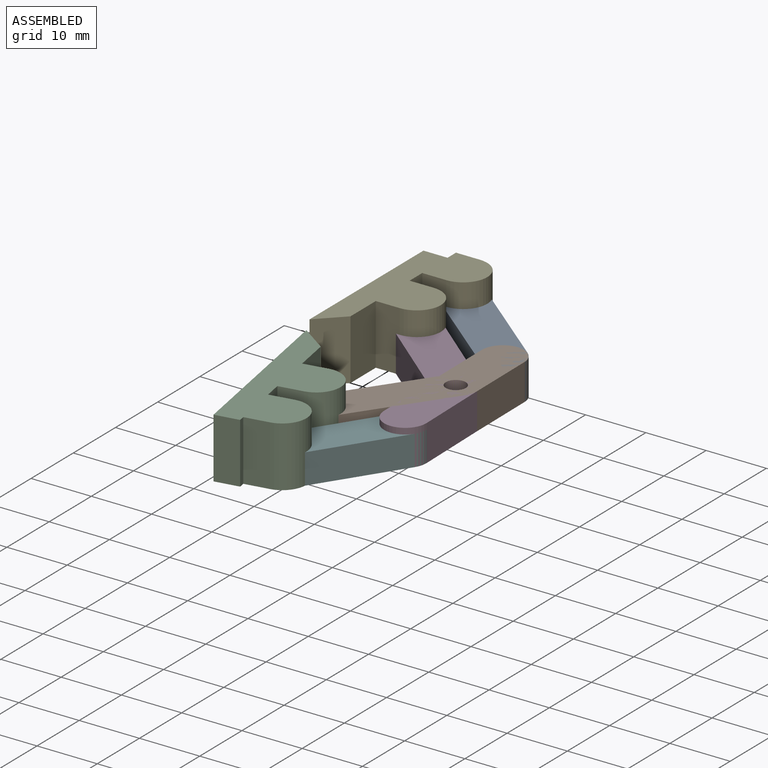
[diagram: assembled view]
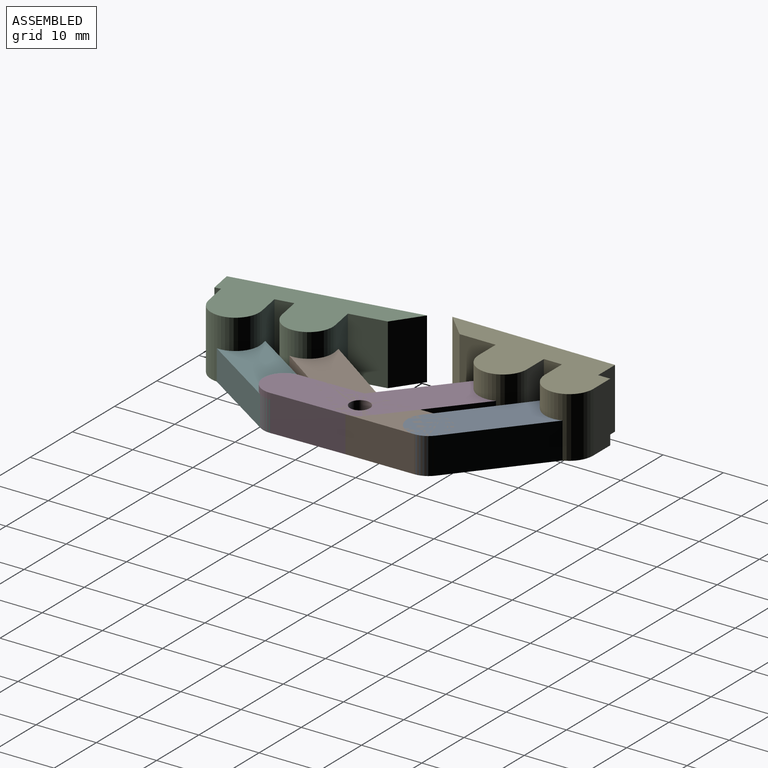
[diagram: assembled view, second angle]
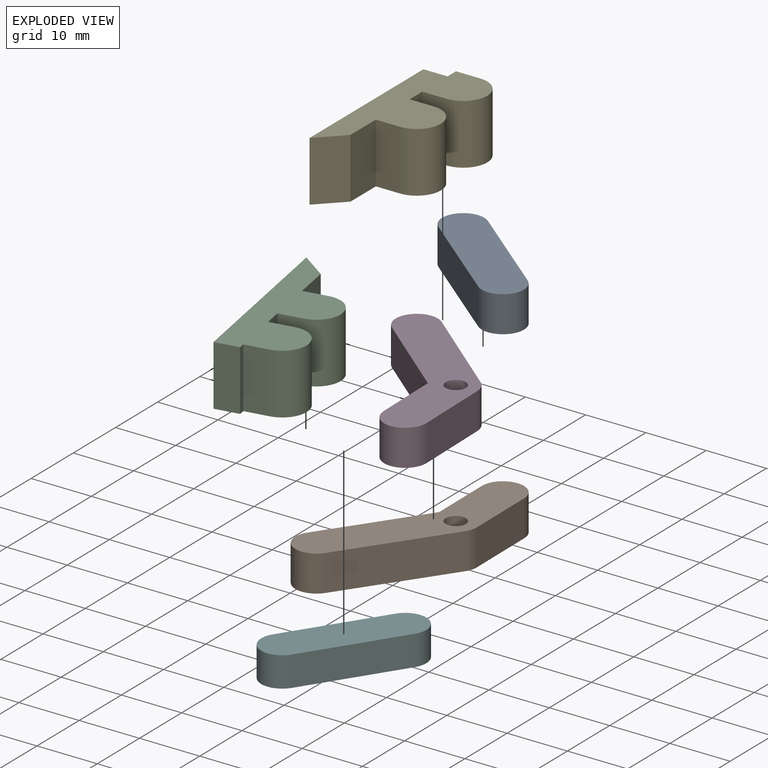
[diagram: exploded view]
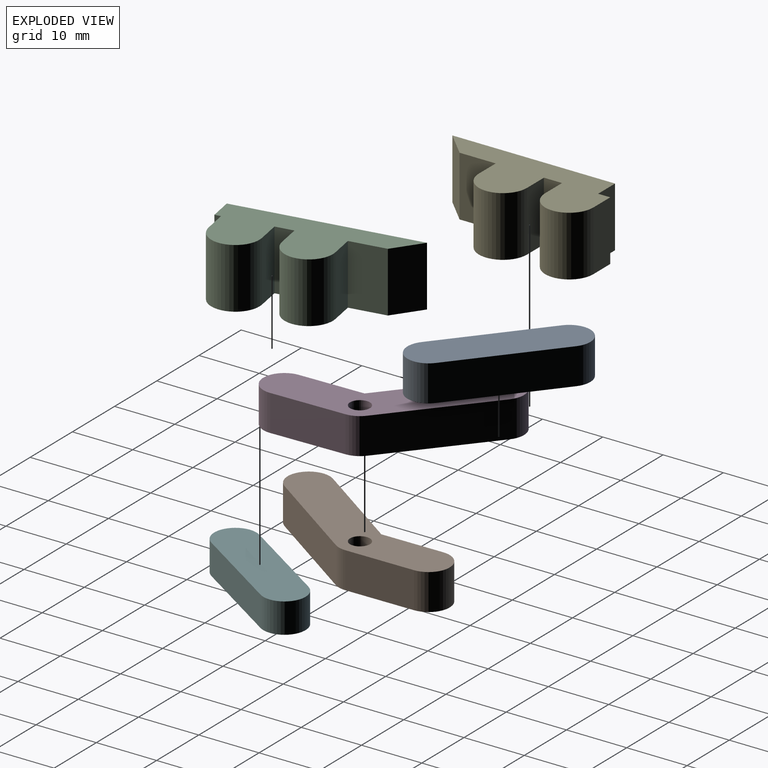
[diagram: exploded view, second angle]
ASSEMBLY  parts=6 mates=7
PART A: 6 faces, bbox 23.3x18.3x6 mm
  f0: plane 16.33x11.3mm, normal (-0.57,0.82,0), area 119.2mm2, adj f1,f3,f4,f5
  f1: cylinder r=3.5mm len=6.38mm, axis (0,0,-1), area 66mm2, adj f0,f2,f4,f5
  f2: plane 16.33x11.3mm, normal (0.57,-0.82,0), area 119.2mm2, adj f1,f3,f4,f5
  f3: cylinder r=3.5mm len=6.38mm, axis (0,0,-1), area 66mm2, adj f0,f2,f4,f5
  f4: plane 23.33x18.3mm, normal (0,0,1), area 177.5mm2, adj f0,f1,f2,f3
  f5: plane 23.33x18.3mm, normal (0,0,-1), area 177.5mm2, adj f0,f1,f2,f3
PART B: 10 faces, bbox 17.9x35.3x6 mm
  f0: plane 16.06x10.27mm, normal (-0.84,0.54,0), area 114.4mm2, adj f1,f6,f8,f9
  f1: cylinder r=3.5mm len=6.45mm, axis (0,0,-1), area 66mm2, adj f0,f2,f8,f9
  f2: plane 17x10.87mm, normal (0.84,-0.54,0), area 121.1mm2, adj f1,f3,f8,f9
  f3: cylinder r=3.5mm len=6mm, axis (0,0,-1), area 12.9mm2, adj f2,f4,f8,f9
  f4: plane 11.3x6mm, normal (1,0.05,0), area 67.9mm2, adj f3,f5,f8,f9
  f5: cylinder r=3.5mm len=7mm, axis (0,0,-1), area 66mm2, adj f4,f6,f8,f9
  f6: plane 10.19x6mm, normal (-1,-0.05,0), area 61.2mm2, adj f0,f5,f8,f9
  f7: cylinder r=1.65mm len=6mm, axis (0,0,-1), area 62.2mm2, adj f8,f9
  f8: plane 35.3x17.87mm, normal (0,0,1), area 250.3mm2, adj f0,f1,f2,f3,f4,f5,f6,f7
  f9: plane 35.3x17.87mm, normal (0,0,-1), area 250.3mm2, adj f0,f1,f2,f3,f4,f5,f6,f7
PART C: 14 faces, bbox 30x12x10 mm
  f0: cylinder r=4mm len=10mm, axis (0,0,-1), area 125.7mm2, adj f1,f11,f12,f13
  f1: plane 10x4mm, normal (-1,0,0), area 40mm2, adj f0,f2,f12,f13
  f2: plane 10x3mm, normal (0,1,0), area 30mm2, adj f1,f3,f12,f13
  f3: plane 10x4mm, normal (1,0,0), area 40mm2, adj f2,f4,f12,f13
  f4: cylinder r=4mm len=10mm, axis (0,0,-1), area 125.7mm2, adj f3,f5,f12,f13
  f5: plane 10x4mm, normal (-1,0,0), area 40mm2, adj f4,f6,f12,f13
  f6: plane 10x6mm, normal (0,1,0), area 60mm2, adj f5,f7,f12,f13
  f7: plane 10x4mm, normal (-0.71,0.71,0), area 56.6mm2, adj f6,f8,f12,f13
  f8: plane 30x10mm, normal (0,-1,0), area 300mm2, adj f7,f9,f12,f13
  f9: plane 10x4mm, normal (1,0,0), area 40mm2, adj f8,f10,f12,f13
  f10: plane 10x1mm, normal (0,1,0), area 10mm2, adj f9,f11,f12,f13
  f11: plane 10x4mm, normal (1,0,0), area 40mm2, adj f0,f10,f12,f13
  f12: plane 30x12mm, normal (0,0,1), area 226.3mm2, adj f0,f1,f2,f3,f4,f5,f6,f7
  f13: plane 30x12mm, normal (0,0,-1), area 226.3mm2, adj f0,f1,f2,f3,f4,f5,f6,f7
PART D: 10 faces, bbox 35.8x18x6 mm
  f0: plane 15.53x10.13mm, normal (0.55,-0.84,0), area 111.3mm2, adj f1,f6,f8,f9
  f1: plane 10.35x6mm, normal (-0.27,-0.96,0), area 64.6mm2, adj f0,f2,f8,f9
  f2: cylinder r=3.5mm len=6.87mm, axis (0,0,-1), area 66mm2, adj f1,f3,f8,f9
  f3: plane 11.88x6mm, normal (0.27,0.96,0), area 74.2mm2, adj f2,f4,f8,f9
  f4: cylinder r=3.5mm len=6mm, axis (0,0,-1), area 18mm2, adj f3,f5,f8,f9
  f5: plane 16.87x11mm, normal (-0.55,0.84,0), area 120.8mm2, adj f4,f6,f8,f9
  f6: cylinder r=3.5mm len=6.43mm, axis (0,0,-1), area 66mm2, adj f0,f5,f8,f9
  f7: cylinder r=1.65mm len=6mm, axis (0,0,-1), area 62.2mm2, adj f8,f9
  f8: plane 35.75x18mm, normal (0,0,1), area 257.1mm2, adj f0,f1,f2,f3,f4,f5,f6,f7
  f9: plane 35.75x18mm, normal (0,0,-1), area 257.1mm2, adj f0,f1,f2,f3,f4,f5,f6,f7
PART E: 14 faces, bbox 12x29x10 mm
  f0: plane 10x4mm, normal (0,1,0), area 40mm2, adj f1,f11,f12,f13
  f1: plane 10x3mm, normal (1,0,0), area 30mm2, adj f0,f2,f12,f13
  f2: plane 10x4mm, normal (0,-1,0), area 40mm2, adj f1,f3,f12,f13
  f3: cylinder r=4mm len=10mm, axis (0,0,-1), area 125.7mm2, adj f2,f4,f12,f13
  f4: plane 10x4mm, normal (0,1,0), area 40mm2, adj f3,f5,f12,f13
  f5: plane 10x2mm, normal (-1,0,0), area 20mm2, adj f4,f6,f12,f13
  f6: plane 10x4mm, normal (0,1,0), area 40mm2, adj f5,f7,f12,f13
  f7: plane 27x10mm, normal (-1,0,0), area 270mm2, adj f6,f8,f12,f13
  f8: plane 10x4mm, normal (0.71,-0.71,0), area 56.6mm2, adj f7,f9,f12,f13
  f9: plane 10x6mm, normal (1,0,0), area 60mm2, adj f8,f10,f12,f13
  f10: plane 10x4mm, normal (0,-1,0), area 40mm2, adj f9,f11,f12,f13
  f11: cylinder r=4mm len=10mm, axis (0,0,-1), area 125.7mm2, adj f0,f10,f12,f13
  f12: plane 29x12mm, normal (0,0,1), area 214.3mm2, adj f0,f1,f2,f3,f4,f5,f6,f7
  f13: plane 29x12mm, normal (0,0,-1), area 214.3mm2, adj f0,f1,f2,f3,f4,f5,f6,f7
PART F: 6 faces, bbox 18.8x20.6x5 mm
  f0: plane 13.61x11.75mm, normal (0.76,-0.65,0), area 89.9mm2, adj f1,f3,f4,f5
  f1: cylinder r=3.5mm len=6.15mm, axis (0,0,-1), area 55mm2, adj f0,f2,f4,f5
  f2: plane 13.61x11.75mm, normal (-0.76,0.65,0), area 89.9mm2, adj f1,f3,f4,f5
  f3: cylinder r=3.5mm len=6.15mm, axis (0,0,-1), area 55mm2, adj f0,f2,f4,f5
  f4: plane 20.61x18.75mm, normal (0,0,1), area 164.3mm2, adj f0,f1,f2,f3
  f5: plane 20.61x18.75mm, normal (0,0,-1), area 164.3mm2, adj f0,f1,f2,f3
PLACE A rot(axis=(0,0,-1),73.9deg) t=(-28.99,16.48,5.23)mm
PLACE B rot(axis=(0,0,-1),2.2deg) t=(-10.33,-34.34,5.23)mm
PLACE C rot(axis=(0,0,-1),79.9deg) t=(-9.2,-12.04,5.23)mm
PLACE D rot(axis=(0,0,-1),72.9deg) t=(-18.48,8.18,5.23)mm
PLACE E t=(-7.87,-11.45,5.23)mm fixed
PLACE F rot(axis=(0,0,1),7.6deg) t=(-17.31,-48.93,5.23)mm
MATE revolute D.f4 <-> B.f3  axis (0,0,-1) through (15.61,-7.33,5.23)mm
MATE revolute A.f1 <-> E.f3  axis (0,0,-1) through (0.13,16.55,5.23)mm
MATE revolute D.f6 <-> E.f11  axis (0,0,-1) through (0.13,5.55,5.23)mm
MATE revolute B.f5 <-> A.f3  axis (0,0,-1) through (15.51,3.99,5.23)mm
MATE revolute F.f1 <-> D.f2  axis (0,0,-1) through (15.87,-19.68,5.23)mm
MATE revolute C.f4 <-> B.f1  axis (0,0,-1) through (4.09,-23.89,5.23)mm
MATE revolute F.f3 <-> C.f0  axis (0,0,-1) through (6.02,-34.72,5.23)mm
